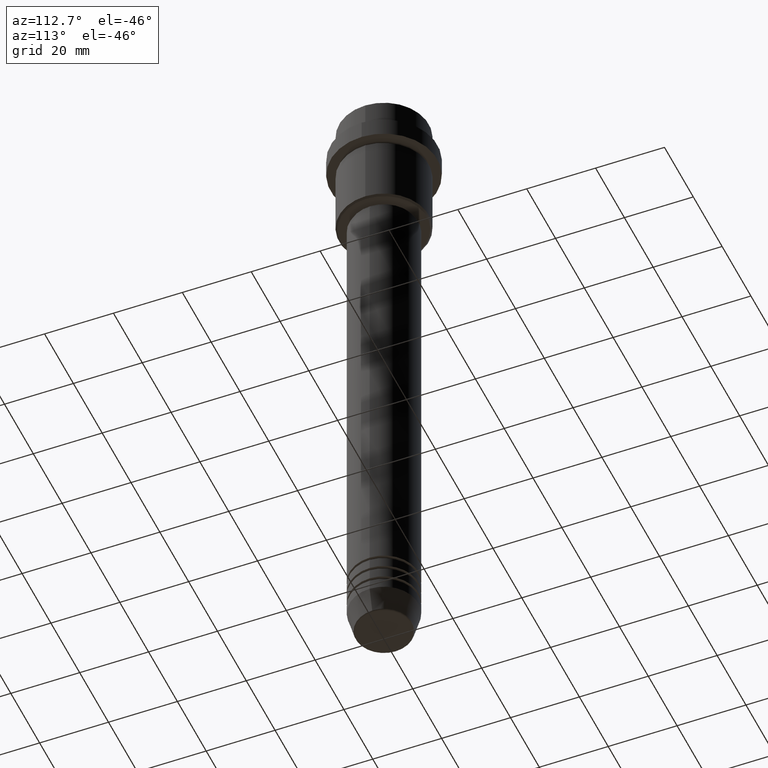
[diagram: clean part render]
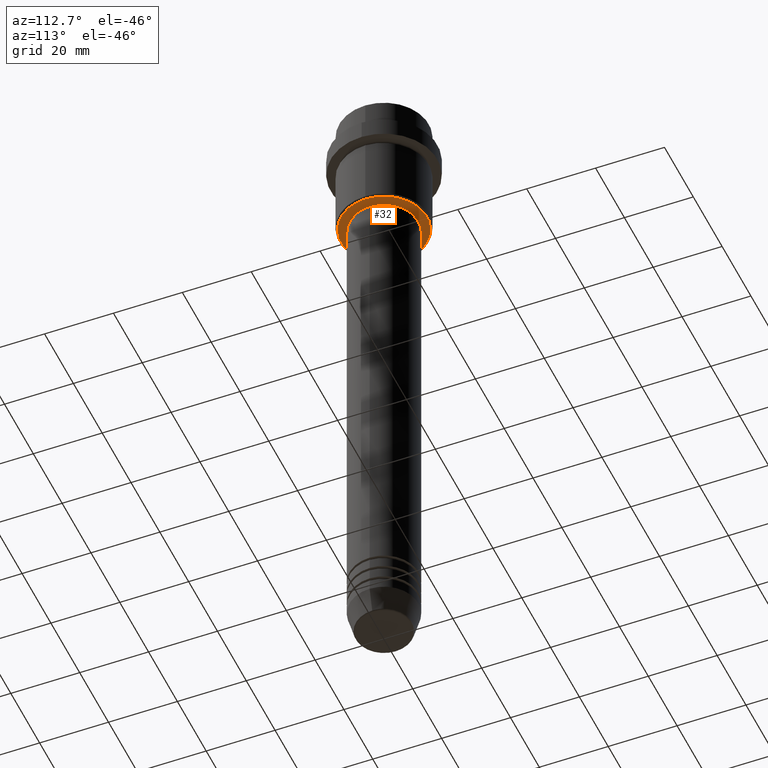
[diagram: same view with one face highlighted and labeled with its STEP entity id]
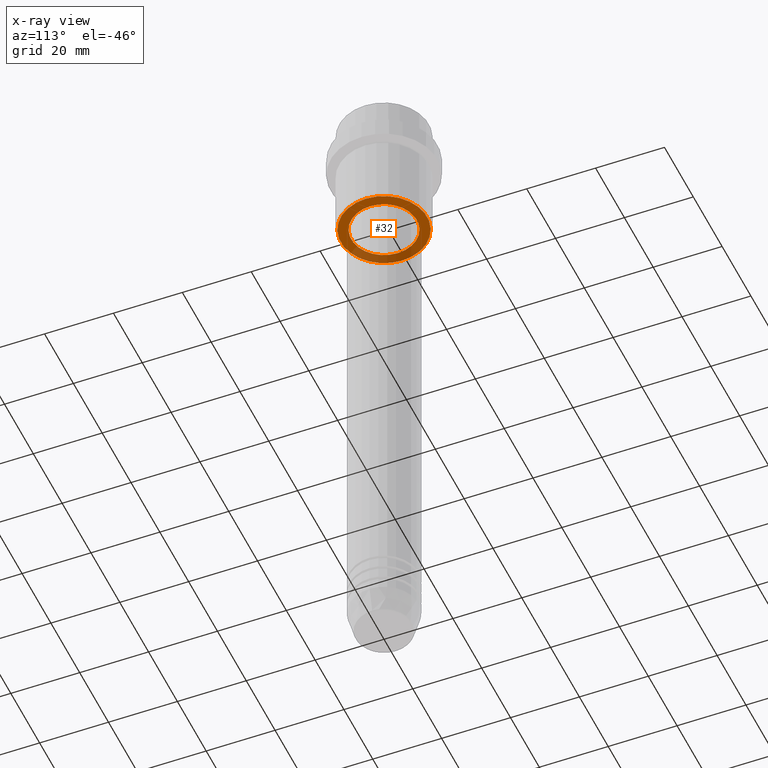
[diagram: x-ray of the same camera — body ghosted, the highlighted face saturated]
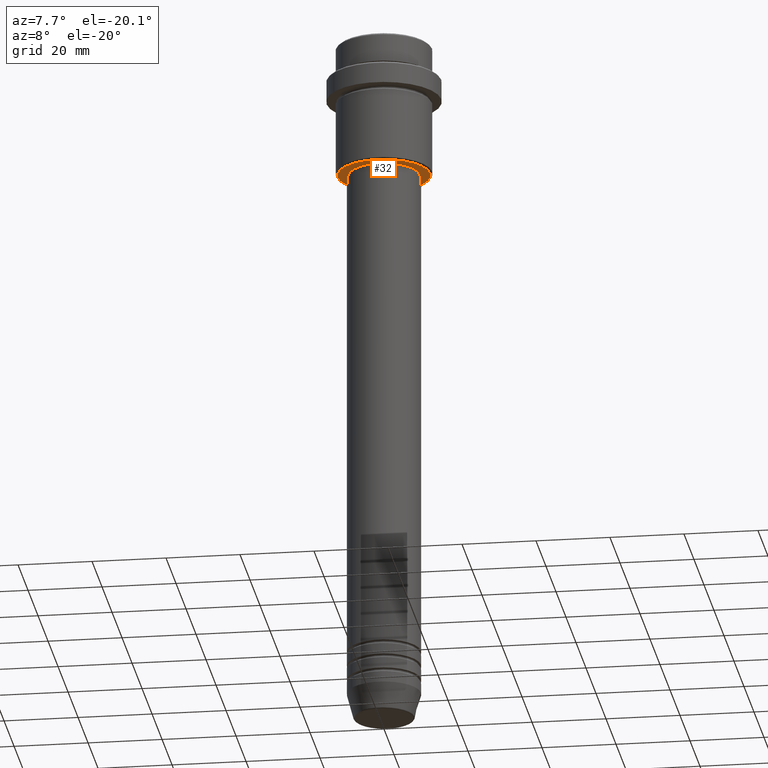
[diagram: same view with one face highlighted and labeled with its STEP entity id]
A machine part, auxiliary view. The second image highlights one B-rep face of the part: STEP entity #32.
The next image is the same camera in x-ray: the body ghosted, the highlighted face saturated — about 26% of this face is hidden behind the body in this view.
A second angle (auxiliary view) of the same face is appended — the face is thin or edge-on in the first view.
In plain terms, the highlighted planar face has unit normal (0, 0, -1).
Its self-contained STEP definition (entity closure, byte-faithful):
#10 = DIRECTION ( 'NONE',  ( 1.000000000000000000, 0.000000000000000000, 0.000000000000000000 ) ) ;
#32 = ADVANCED_FACE ( 'NONE', ( #695, #485 ), #267, .T. ) ;
#42 = DIRECTION ( 'NONE',  ( -1.000000000000000000, 0.000000000000000000, -0.000000000000000000 ) ) ;
#75 = AXIS2_PLACEMENT_3D ( 'NONE', #1133, #586, #42 ) ;
#78 = ORIENTED_EDGE ( 'NONE', *, *, #692, .T. ) ;
#102 = EDGE_LOOP ( 'NONE', ( #1002, #78 ) ) ;
#177 = CIRCLE ( 'NONE', #842, 12.50000000000003908 ) ;
#197 = DIRECTION ( 'NONE',  ( -1.000000000000000000, 0.000000000000000000, 0.000000000000000000 ) ) ;
#228 = VERTEX_POINT ( 'NONE', #877 ) ;
#240 = VERTEX_POINT ( 'NONE', #658 ) ;
#267 = PLANE ( 'NONE',  #75 ) ;
#342 = CARTESIAN_POINT ( 'NONE',  ( 0.000000000000000000, 0.000000000000000000, -36.00000000000001421 ) ) ;
#465 = DIRECTION ( 'NONE',  ( -1.000000000000000000, 0.000000000000000000, 0.000000000000000000 ) ) ;
#473 = CIRCLE ( 'NONE', #1280, 9.499999999999996447 ) ;
#485 = FACE_BOUND ( 'NONE', #918, .T. ) ;
#547 = CARTESIAN_POINT ( 'NONE',  ( 12.50000000000003908, 0.000000000000000000, -36.00000000000001421 ) ) ;
#558 = CARTESIAN_POINT ( 'NONE',  ( 0.000000000000000000, 0.000000000000000000, -36.00000000000001421 ) ) ;
#586 = DIRECTION ( 'NONE',  ( 0.000000000000000000, 0.000000000000000000, -1.000000000000000000 ) ) ;
#593 = VERTEX_POINT ( 'NONE', #928 ) ;
#658 = CARTESIAN_POINT ( 'NONE',  ( 9.499999999999996447, 0.000000000000000000, -36.00000000000001421 ) ) ;
#664 = DIRECTION ( 'NONE',  ( 0.000000000000000000, 0.000000000000000000, -1.000000000000000000 ) ) ;
#692 = EDGE_CURVE ( 'NONE', #593, #762, #177, .T. ) ;
#695 = FACE_OUTER_BOUND ( 'NONE', #102, .T. ) ;
#753 = EDGE_CURVE ( 'NONE', #240, #228, #473, .T. ) ;
#762 = VERTEX_POINT ( 'NONE', #547 ) ;
#842 = AXIS2_PLACEMENT_3D ( 'NONE', #558, #664, #465 ) ;
#877 = CARTESIAN_POINT ( 'NONE',  ( -9.499999999999996447, 1.163414459189985091E-15, -36.00000000000001421 ) ) ;
#889 = CIRCLE ( 'NONE', #1413, 9.499999999999996447 ) ;
#891 = DIRECTION ( 'NONE',  ( -0.000000000000000000, -0.000000000000000000, 1.000000000000000000 ) ) ;
#918 = EDGE_LOOP ( 'NONE', ( #1400, #992 ) ) ;
#928 = CARTESIAN_POINT ( 'NONE',  ( -12.50000000000003908, 1.561424668912877675E-15, -36.00000000000001421 ) ) ;
#988 = EDGE_CURVE ( 'NONE', #762, #593, #1095, .T. ) ;
#991 = CARTESIAN_POINT ( 'NONE',  ( 0.000000000000000000, 0.000000000000000000, -36.00000000000001421 ) ) ;
#992 = ORIENTED_EDGE ( 'NONE', *, *, #1331, .T. ) ;
#1002 = ORIENTED_EDGE ( 'NONE', *, *, #988, .T. ) ;
#1081 = DIRECTION ( 'NONE',  ( 0.000000000000000000, 0.000000000000000000, -1.000000000000000000 ) ) ;
#1095 = CIRCLE ( 'NONE', #1281, 12.50000000000003908 ) ;
#1122 = DIRECTION ( 'NONE',  ( 1.000000000000000000, 0.000000000000000000, 0.000000000000000000 ) ) ;
#1133 = CARTESIAN_POINT ( 'NONE',  ( 0.000000000000000000, 13.00000000000000000, -36.00000000000001421 ) ) ;
#1280 = AXIS2_PLACEMENT_3D ( 'NONE', #342, #891, #1122 ) ;
#1281 = AXIS2_PLACEMENT_3D ( 'NONE', #1295, #1081, #197 ) ;
#1295 = CARTESIAN_POINT ( 'NONE',  ( 0.000000000000000000, 0.000000000000000000, -36.00000000000001421 ) ) ;
#1309 = DIRECTION ( 'NONE',  ( -0.000000000000000000, -0.000000000000000000, 1.000000000000000000 ) ) ;
#1331 = EDGE_CURVE ( 'NONE', #228, #240, #889, .T. ) ;
#1400 = ORIENTED_EDGE ( 'NONE', *, *, #753, .T. ) ;
#1413 = AXIS2_PLACEMENT_3D ( 'NONE', #991, #1309, #10 ) ;